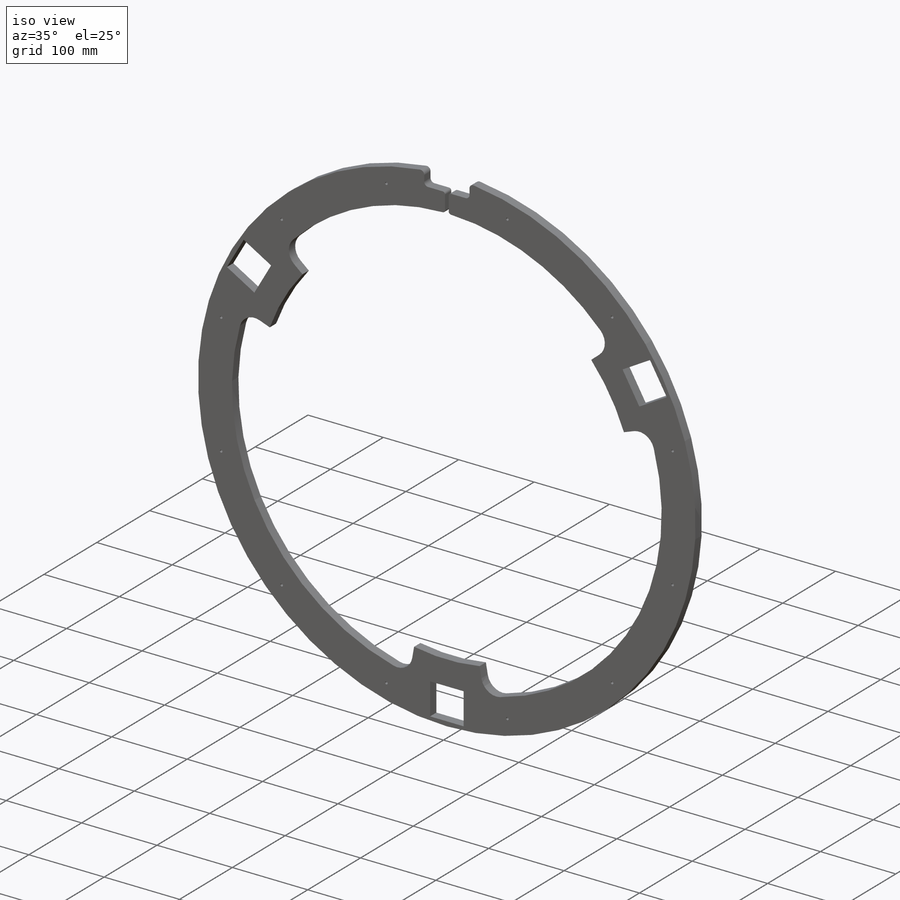
[diagram: iso view]
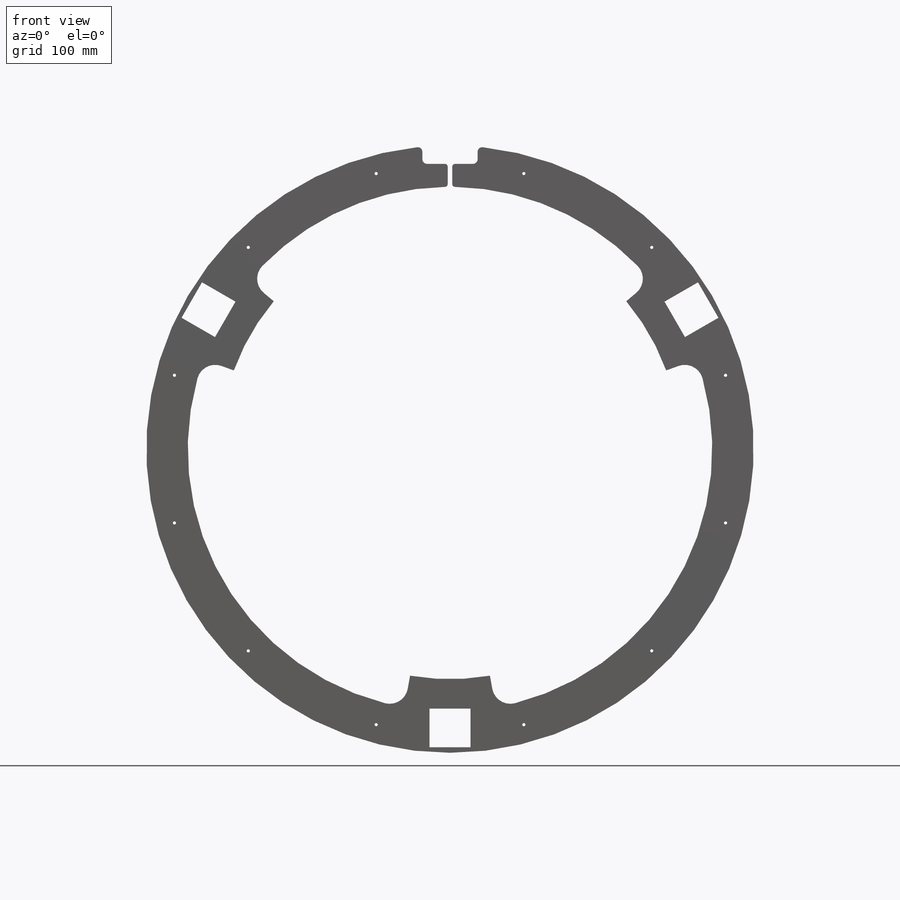
[diagram: front view]
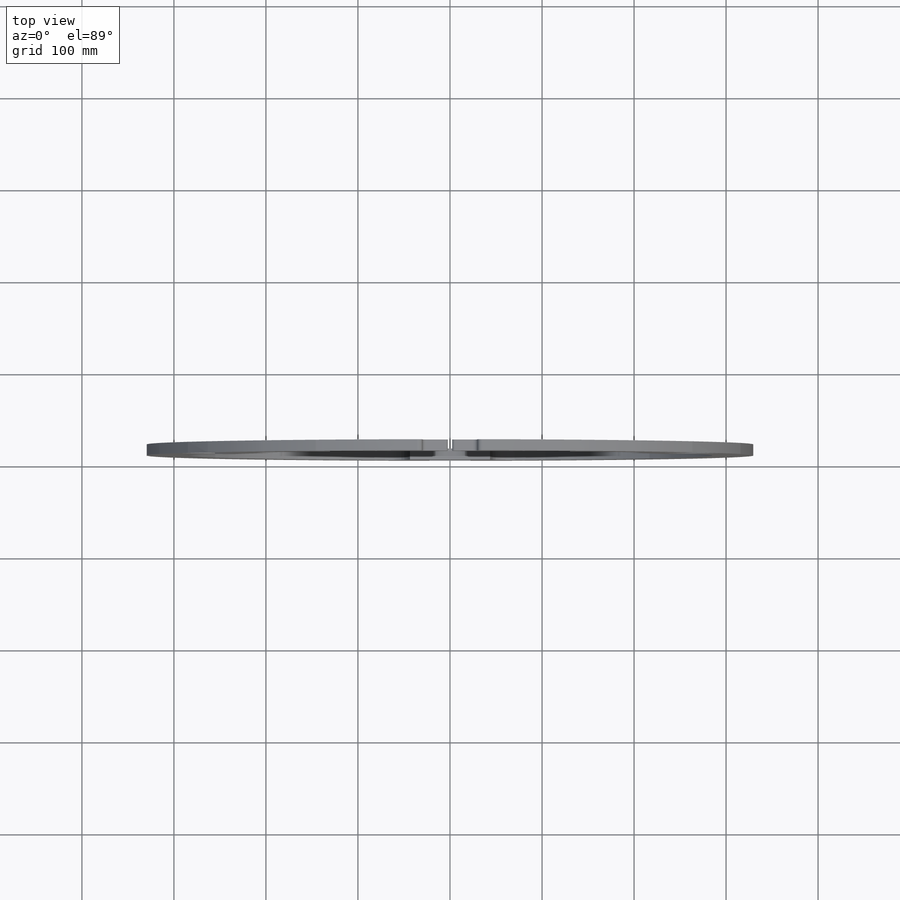
[diagram: top view]
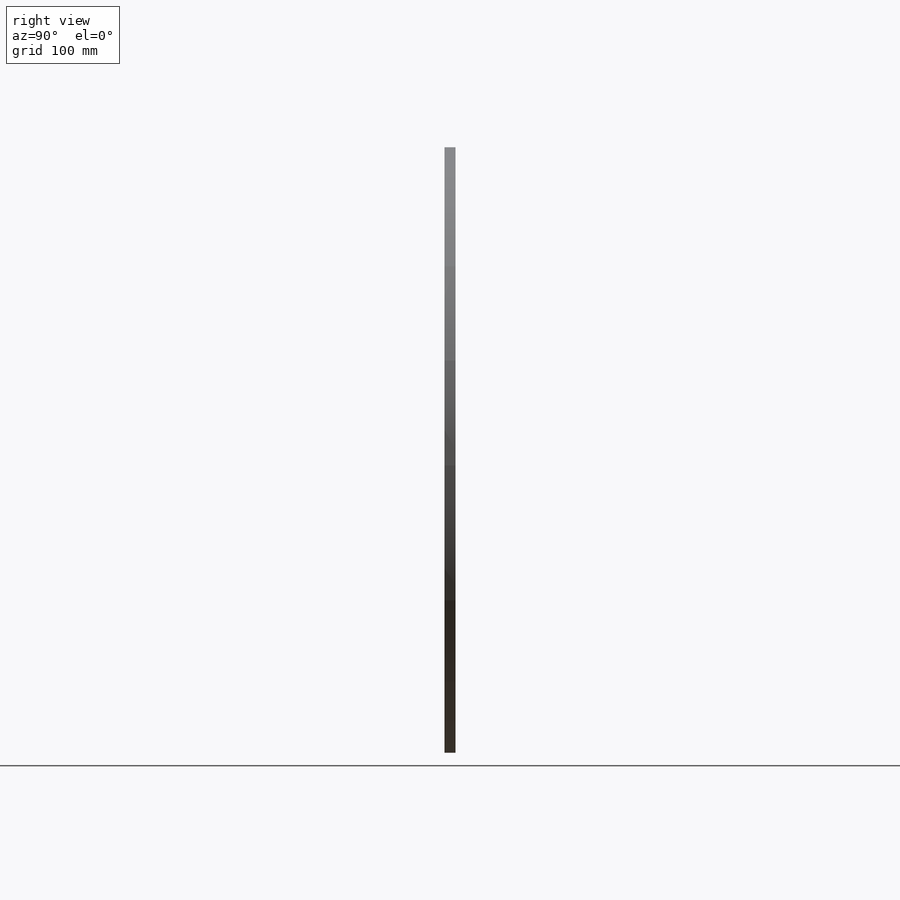
[diagram: right view]
SOLIDWORKS PART (.sldprt)
format: sldprt  version: not decoded by parser v0  size: 2,248,192 bytes
history: native  units: mm
features: sketch x9, cut_extrude x6, fillet x2, material x1, extrude x1, hole x1 (+12 scaffold rows collapsed)
feature tree (32):
  scaffold x12  (default folders/planes/origin — collapsed)
  material  "Material <not specified>"
  sketch  "Sketch2"  dims[c1.D1=660.0mm c1.D6=500.0mm c1.D2=42.0mm c1.D3=44.45mm c1.D4=282.0mm c1.D5=~187.32356mm c2.D5=60.0deg c3.D5=~138.267127mm c4.D5=60.0deg c4.D7=3.0]
  extrude  "Boss-Extrude1"  Depth=12mm
  sketch  "Sketch3"  dims[c1.D1=~285.467319mm c1.D3=20.0mm c1.D2=~155.645332mm c2.D2=~101.278805deg c2.D1=45.0mm c3.D2=~9.58908mm c4.D2=100.0deg c4.D4=3.0]
  cut_extrude  "Cut-Extrude1"  Depth=12mm
  sketch  "Sketch5"  dims[D1=310.0mm D2=60.0mm D3=60.0mm]
  cut_extrude  "Cut-Extrude2"  Depth=12mm
  fillet  "Fillet1"  Radius=5mm
  sketch  "Sketch6"  dims[D1=5.0mm D2=30.0mm]
  cut_extrude  "Cut-Extrude3"  Depth=12mm
  fillet  "Fillet2"  Radius=3mm
  hole  "CSK for M4 Flat Head Machine Screw"  Diameter=4.5mm Depth=24mm
  sketch  "Sketch7"  dims[c1.D1=310.0mm c1.D2=~423.706896mm c2.D2=15.0deg]
  sketch  "Sketch8"  dims[Thru Hole Dia.=4.5mm Thru Hole Depth=24.0mm Near C'Sink Dia.=9.4mm Near C'Sink Angle=90.0deg]
  sketch  "Sketch9"  dims[c1.D1=~454.687196mm c2.D1=120.0deg c2.D2=355.0mm]
  cut_extrude  "Cut-Extrude4"  Depth=12mm
  sketch  "Sketch10"  dims[c1.D1=~372.509892mm c2.D1=120.0deg c2.D2=355.0mm]
  cut_extrude  "Cut-Extrude5"  Depth=12mm
  sketch  "Sketch11"  dims[c1.D1=~438.24158mm c2.D1=120.0deg c2.D2=~487.096743mm c3.D2=120.0deg c3.D3=355.0mm]
  cut_extrude  "Cut-Extrude6"  Depth=12mm
decode coverage: 19 of 19 modeling features carry decoded parameters
note: ~ marks probable driven/reference dimensions
note: suppression state not decoded; provenance and decode notes live in map.json
